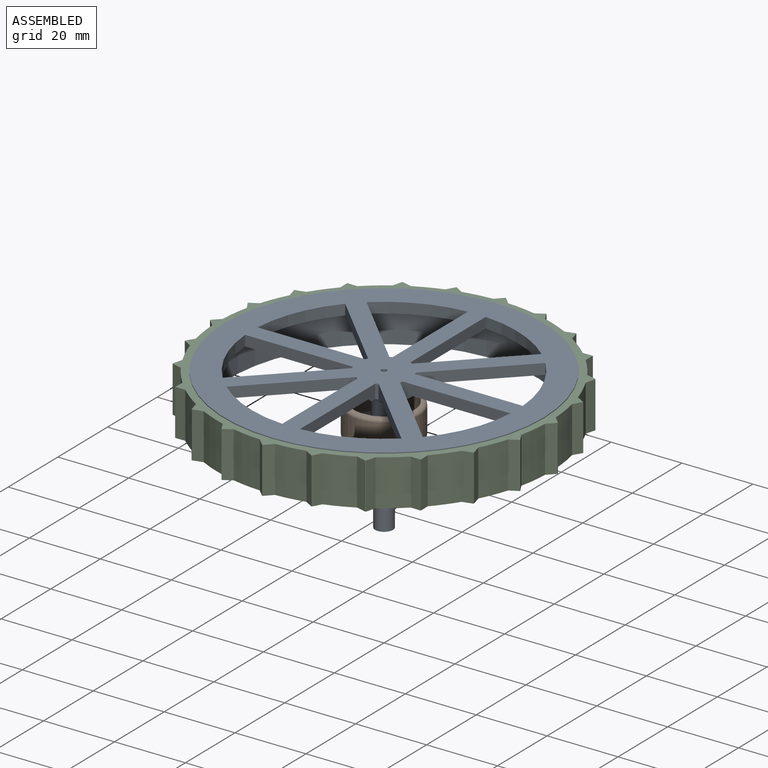
[diagram: assembled view]
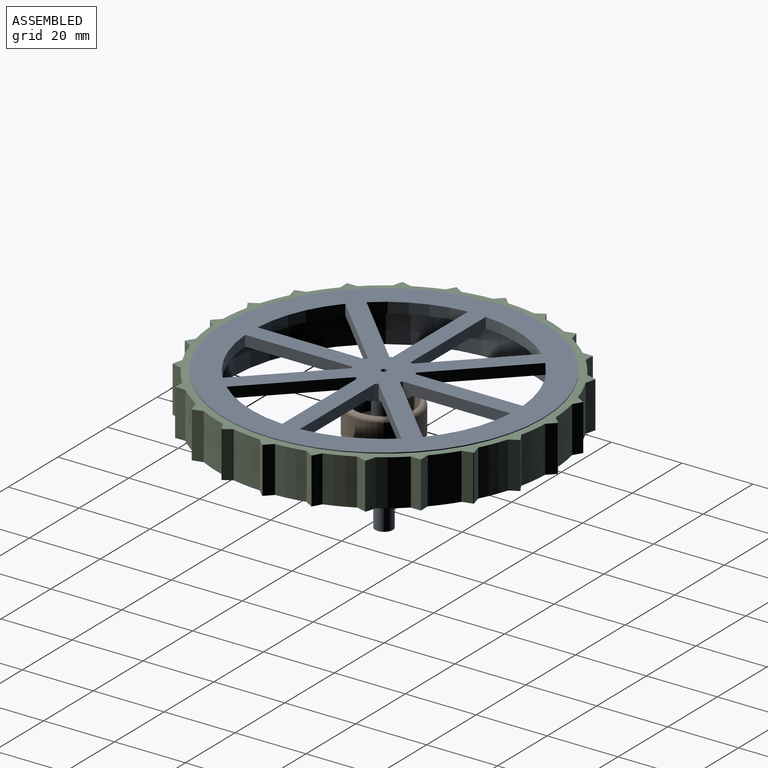
[diagram: assembled view, second angle]
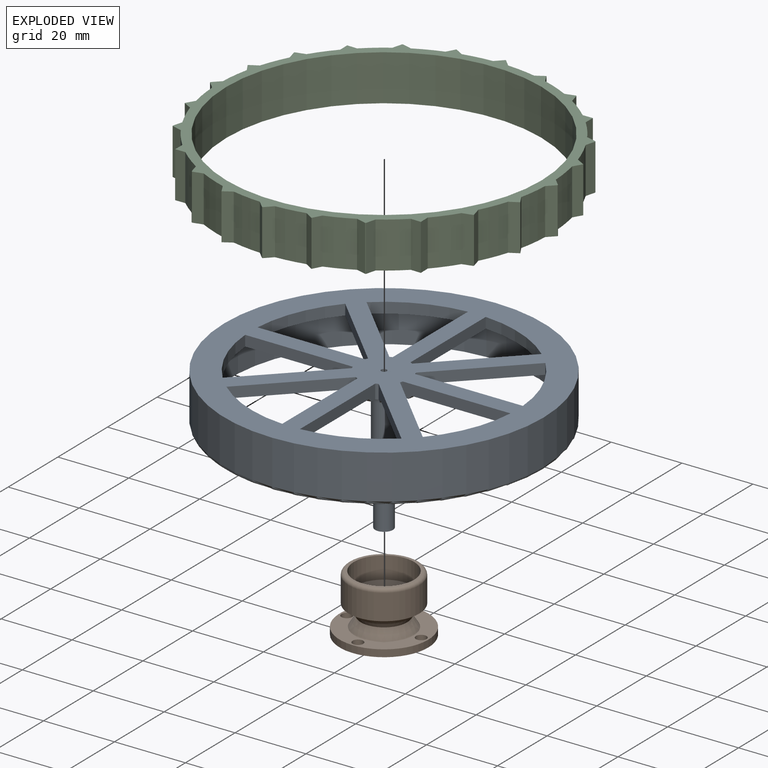
[diagram: exploded view]
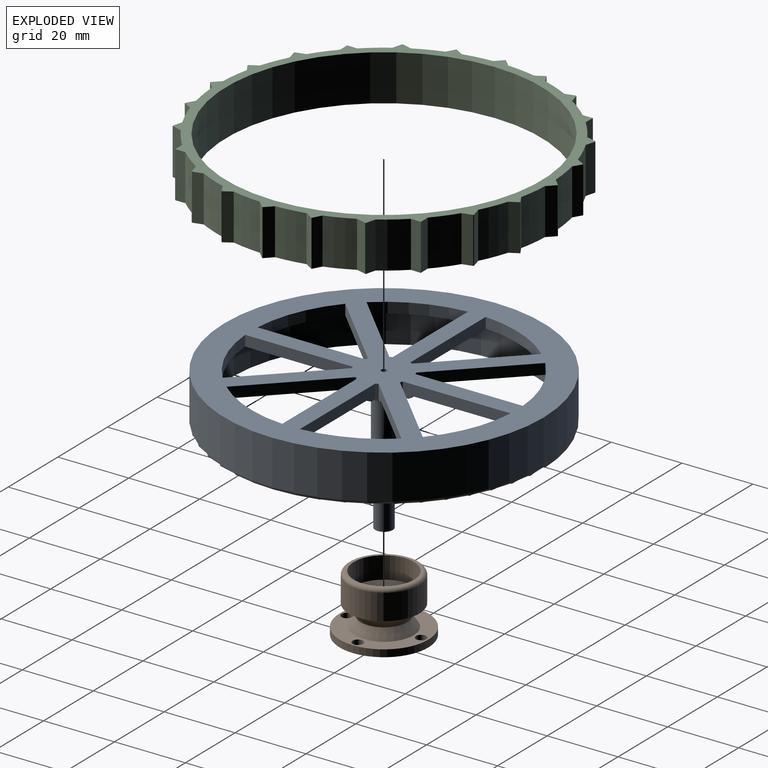
[diagram: exploded view, second angle]
ASSEMBLY  parts=3 mates=2
PART A: 54 faces, bbox 97.4x97.4x40 mm
  f0: cone r=5mm half-angle=45deg, axis (0,0,-1), area 7.2mm2, adj f7,f16,f18,f50
  f1: cone r=5mm half-angle=45deg, axis (0,0,-1), area 7.2mm2, adj f7,f20,f38,f50
  f2: cone r=5mm half-angle=45deg, axis (0,0,-1), area 7.2mm2, adj f7,f26,f40,f50
  f3: cone r=5mm half-angle=45deg, axis (0,0,-1), area 7.2mm2, adj f7,f22,f28,f50
  f4: cone r=5mm half-angle=45deg, axis (0,0,-1), area 7.2mm2, adj f7,f24,f30,f50
  f5: cone r=5mm half-angle=45deg, axis (0,0,-1), area 7.2mm2, adj f7,f32,f42,f50
  f6: cone r=5mm half-angle=45deg, axis (0,0,-1), area 7.2mm2, adj f7,f34,f44,f50
  f7: plane 82.6x82.6mm, normal (0,0,1), area 2043.8mm2, adj f0,f1,f2,f3,f4,f5,f6,f13
  f8: plane 90x90mm, normal (0,0,-1), area 3323.2mm2, adj f10,f14,f15,f16,f17,f18,f19,f20
  f9: cylinder r=43.3mm len=86.6mm, axis (0,0,-1), area 2312.5mm2, adj f11,f13
  f10: cylinder r=45mm len=90mm, axis (0,0,-1), area 3534.3mm2, adj f8,f12
  f11: plane 88x88mm, normal (0,0,1), area 192mm2, adj f9,f12
  f12: torus R=44mm, axis (0,0,1), area 440.5mm2, adj f10,f11
  f13: torus R=41.3mm, axis (0,0,1), area 840.4mm2, adj f7,f9
  f14: plane 21.47x21.47mm, normal (-0.71,0.71,0), area 93.1mm2, adj f7,f8,f15,f17,f50,f52
  f15: cylinder r=7.5mm len=4mm, axis (0,0,-1), area 3.2mm2, adj f8,f14,f16,f50
  f16: plane 30.36x4.01mm, normal (1,0,0), area 93.1mm2, adj f0,f7,f8,f15,f17,f50
  f17: cylinder r=37.5mm len=22.19mm, axis (0,0,-1), area 73.3mm2, adj f7,f8,f14,f16
  f18: plane 30.36x4.01mm, normal (-1,0,0), area 93.1mm2, adj f0,f7,f8,f19,f21,f50
  f19: cylinder r=7.5mm len=4mm, axis (0,0,-1), area 3.2mm2, adj f8,f18,f20,f50
  f20: plane 21.47x21.47mm, normal (0.71,0.71,0), area 93.1mm2, adj f1,f7,f8,f19,f21,f50
  f21: cylinder r=37.5mm len=22.19mm, axis (0,0,-1), area 73.3mm2, adj f7,f8,f18,f20
  f22: plane 21.47x21.47mm, normal (0.71,-0.71,0), area 93.1mm2, adj f3,f7,f8,f23,f25,f50
  f23: cylinder r=7.5mm len=4mm, axis (0,0,-1), area 3.2mm2, adj f8,f22,f24,f50
  f24: plane 30.36x4.01mm, normal (-1,0,0), area 93.1mm2, adj f4,f7,f8,f23,f25,f50
  f25: cylinder r=37.5mm len=22.19mm, axis (0,0,-1), area 73.3mm2, adj f7,f8,f22,f24
  f26: plane 30.36x4.01mm, normal (0,-1,0), area 93.1mm2, adj f2,f7,f8,f27,f29,f50
  f27: cylinder r=7.5mm len=4mm, axis (0,0,-1), area 3.2mm2, adj f8,f26,f28,f50
  f28: plane 21.47x21.47mm, normal (-0.71,0.71,0), area 93.1mm2, adj f3,f7,f8,f27,f29,f50
  f29: cylinder r=37.5mm len=22.19mm, axis (0,0,-1), area 73.3mm2, adj f7,f8,f26,f28
  f30: plane 30.36x4.01mm, normal (1,0,0), area 93.1mm2, adj f4,f7,f8,f31,f33,f50
  f31: cylinder r=7.5mm len=4mm, axis (0,0,-1), area 3.2mm2, adj f8,f30,f32,f50
  f32: plane 21.47x21.47mm, normal (-0.71,-0.71,0), area 93.1mm2, adj f5,f7,f8,f31,f33,f50
  f33: cylinder r=37.5mm len=22.19mm, axis (0,0,-1), area 73.3mm2, adj f7,f8,f30,f32
  f34: plane 30.36x4.01mm, normal (0,1,0), area 93.1mm2, adj f6,f7,f8,f35,f37,f50
  f35: cylinder r=7.5mm len=4mm, axis (0,0,-1), area 3.2mm2, adj f8,f34,f36,f50
  f36: plane 21.47x21.47mm, normal (0.71,-0.71,0), area 93.1mm2, adj f7,f8,f35,f37,f50,f52
  f37: cylinder r=37.5mm len=22.19mm, axis (0,0,-1), area 73.3mm2, adj f7,f8,f34,f36
  f38: plane 21.47x21.47mm, normal (-0.71,-0.71,0), area 93.1mm2, adj f1,f7,f8,f39,f41,f50
  f39: cylinder r=7.5mm len=4mm, axis (0,0,-1), area 3.2mm2, adj f8,f38,f40,f50
  f40: plane 30.36x4.01mm, normal (0,1,0), area 93.1mm2, adj f2,f7,f8,f39,f41,f50
  f41: cylinder r=37.5mm len=22.19mm, axis (0,0,-1), area 73.3mm2, adj f7,f8,f38,f40
  f42: plane 21.47x21.47mm, normal (0.71,0.71,0), area 93.1mm2, adj f5,f7,f8,f43,f45,f50
  f43: cylinder r=7.5mm len=4mm, axis (0,0,-1), area 3.2mm2, adj f8,f42,f44,f50
  f44: plane 30.36x4.01mm, normal (0,-1,0), area 93.1mm2, adj f6,f7,f8,f43,f45,f50
  f45: cylinder r=37.5mm len=22.19mm, axis (0,0,-1), area 73.3mm2, adj f7,f8,f42,f44
  f46: cylinder r=3.04mm len=17.61mm, axis (0,0,-1), area 336.6mm2, adj f51,f53
  f47: cylinder r=0.78mm len=40mm, axis (0,0,-1), area 194.8mm2, adj f8,f49
  f48: cylinder r=2.5mm len=14.85mm, axis (0,0,-1), area 233.3mm2, adj f49,f51
  f49: plane 5x5mm, normal (0,0,1), area 17.7mm2, adj f47,f48
  f50: plane 18x18mm, normal (0,0,1), area 123mm2, adj f0,f1,f2,f3,f4,f5,f6,f14
  f51: cone r=2.5mm half-angle=45deg, axis (0,0,-1), area 13.4mm2, adj f46,f48
  f52: cone r=5mm half-angle=45deg, axis (0,0,-1), area 7.2mm2, adj f7,f14,f36,f50
  f53: torus R=6.04mm, axis (0,0,1), area 122.4mm2, adj f46,f50
PART B: 15 faces, bbox 26x26x16.2 mm
  f0: plane 17x17mm, normal (0,0,1), area 188.5mm2, adj f2,f11
  f1: cylinder r=10mm len=20mm, axis (0,0,1), area 452.4mm2, adj f12,f13
  f2: cylinder r=8.5mm len=17mm, axis (0,0,-1), area 331.1mm2, adj f0,f3
  f3: plane 18x18mm, normal (0,0,1), area 27.5mm2, adj f2,f12
  f4: cylinder r=1.5mm len=3mm, axis (0,0,-1), area 18.8mm2, adj f9,f10
  f5: cylinder r=1.5mm len=3mm, axis (0,0,-1), area 18.8mm2, adj f9,f10
  f6: cylinder r=1.5mm len=3mm, axis (0,0,-1), area 18.8mm2, adj f9,f10
  f7: cylinder r=1.5mm len=3mm, axis (0,0,-1), area 18.8mm2, adj f9,f10
  f8: cylinder r=12.5mm len=25mm, axis (0,0,-1), area 157.1mm2, adj f9,f10
  f9: plane 25x25mm, normal (0,0,1), area 243.1mm2, adj f4,f5,f6,f7,f8,f14
  f10: plane 25x25mm, normal (0,0,-1), area 424.1mm2, adj f4,f5,f6,f7,f8,f11
  f11: cylinder r=3.5mm len=10mm, axis (0,0,-1), area 219.9mm2, adj f0,f10
  f12: torus R=9mm, axis (0,0,1), area 95.1mm2, adj f1,f3
  f13: torus R=12mm, axis (0,0,1), area 244.1mm2, adj f1,f14
  f14: cone r=6.54mm half-angle=32.8deg, axis (0,0,-1), area 157.4mm2, adj f9,f13
PART C: 87 faces, bbox 98x98x13 mm
  f0: cylinder r=47mm len=13mm, axis (0,0,-1), area 106.4mm2, adj f37,f38,f53,f54
  f1: plane 13x0.17mm, normal (0.87,0.5,0), area 2.5mm2, adj f37,f38,f53,f76
  f2: cylinder r=47mm len=13mm, axis (0,0,-1), area 106.4mm2, adj f37,f38,f52,f76
  f3: cylinder r=47mm len=13mm, axis (0,0,-1), area 106.4mm2, adj f37,f38,f50,f51
  f4: plane 13x0.17mm, normal (0.5,0.87,0), area 2.5mm2, adj f37,f38,f50,f75
  f5: cylinder r=47mm len=13mm, axis (0,0,-1), area 106.4mm2, adj f37,f38,f49,f75
  f6: cylinder r=47mm len=13mm, axis (0,0,-1), area 106.4mm2, adj f37,f38,f47,f48
  f7: plane 13x0.19mm, normal (0,1,0), area 2.5mm2, adj f37,f38,f47,f86
  f8: cylinder r=47mm len=13mm, axis (0,0,-1), area 106.4mm2, adj f37,f38,f46,f86
  f9: cylinder r=47mm len=13mm, axis (0,0,-1), area 106.4mm2, adj f37,f38,f44,f45
  f10: plane 13x0.17mm, normal (-0.5,0.87,0), area 2.5mm2, adj f37,f38,f44,f85
  f11: cylinder r=47mm len=13mm, axis (0,0,-1), area 106.4mm2, adj f37,f38,f43,f85
  f12: cylinder r=47mm len=13mm, axis (0,0,-1), area 106.4mm2, adj f37,f38,f41,f42
  f13: plane 13x0.17mm, normal (-0.87,0.5,0), area 2.5mm2, adj f37,f38,f41,f84
  f14: cylinder r=47mm len=13mm, axis (0,0,-1), area 106.4mm2, adj f37,f38,f40,f84
  f15: cylinder r=47mm len=13mm, axis (0,0,-1), area 106.4mm2, adj f37,f38,f39,f74
  f16: plane 13x0.19mm, normal (-1,0,0), area 2.5mm2, adj f37,f38,f74,f83
  f17: cylinder r=47mm len=13mm, axis (0,0,-1), area 106.4mm2, adj f37,f38,f73,f83
  f18: cylinder r=47mm len=13mm, axis (0,0,-1), area 106.4mm2, adj f37,f38,f71,f72
  f19: plane 13x0.17mm, normal (-0.87,-0.5,0), area 2.5mm2, adj f37,f38,f71,f82
  f20: cylinder r=47mm len=13mm, axis (0,0,-1), area 106.4mm2, adj f37,f38,f70,f82
  f21: cylinder r=47mm len=13mm, axis (0,0,-1), area 106.4mm2, adj f37,f38,f68,f69
  f22: plane 13x0.17mm, normal (-0.5,-0.87,0), area 2.5mm2, adj f37,f38,f68,f81
  f23: cylinder r=47mm len=13mm, axis (0,0,-1), area 106.4mm2, adj f37,f38,f67,f81
  f24: cylinder r=47mm len=13mm, axis (0,0,-1), area 106.4mm2, adj f37,f38,f65,f66
  f25: plane 13x0.19mm, normal (0,-1,0), area 2.5mm2, adj f37,f38,f65,f80
  f26: cylinder r=47mm len=13mm, axis (0,0,-1), area 106.4mm2, adj f37,f38,f64,f80
  f27: cylinder r=47mm len=13mm, axis (0,0,-1), area 106.4mm2, adj f37,f38,f62,f63
  f28: plane 13x0.17mm, normal (0.5,-0.87,0), area 2.5mm2, adj f37,f38,f62,f79
  f29: cylinder r=47mm len=13mm, axis (0,0,-1), area 106.4mm2, adj f37,f38,f61,f79
  f30: cylinder r=47mm len=13mm, axis (0,0,-1), area 106.4mm2, adj f37,f38,f59,f60
  f31: plane 13x0.17mm, normal (0.87,-0.5,0), area 2.5mm2, adj f37,f38,f59,f78
  f32: cylinder r=47mm len=13mm, axis (0,0,-1), area 106.4mm2, adj f37,f38,f58,f78
  f33: cylinder r=47mm len=13mm, axis (0,0,-1), area 106.4mm2, adj f37,f38,f56,f57
  f34: plane 13x0.19mm, normal (1,0,0), area 2.5mm2, adj f37,f38,f56,f77
  f35: cylinder r=47mm len=13mm, axis (0,0,-1), area 106.4mm2, adj f37,f38,f55,f77
  f36: cylinder r=44.5mm len=89mm, axis (0,0,-1), area 3634.8mm2, adj f37,f38
  f37: plane 98x98mm, normal (0,0,1), area 819.2mm2, adj f0,f1,f2,f3,f4,f5,f6,f7
  f38: plane 98x98mm, normal (0,0,-1), area 819.2mm2, adj f0,f1,f2,f3,f4,f5,f6,f7
  f39: plane 13x2.44mm, normal (-0.86,-0.51,0), area 36.9mm2, adj f15,f37,f38,f40
  f40: plane 13x2.48mm, normal (-0.49,0.87,0), area 36.9mm2, adj f14,f37,f38,f39
  f41: plane 13x2.8mm, normal (-0.26,0.97,0), area 37.7mm2, adj f12,f13,f37,f38
  f42: plane 13x2.84mm, normal (-1,-0.02,0), area 36.9mm2, adj f12,f37,f38,f43
  f43: plane 13x2.84mm, normal (0.02,1,0), area 36.9mm2, adj f11,f37,f38,f42
  f44: plane 13x2.8mm, normal (0.26,0.97,0), area 37.7mm2, adj f9,f10,f37,f38
  f45: plane 13x2.48mm, normal (-0.87,0.49,0), area 36.9mm2, adj f9,f37,f38,f46
  f46: plane 13x2.44mm, normal (0.51,0.86,0), area 36.9mm2, adj f8,f37,f38,f45
  f47: plane 13x2.05mm, normal (0.71,0.71,0), area 37.7mm2, adj f6,f7,f37,f38
  f48: plane 13x2.44mm, normal (-0.51,0.86,0), area 36.9mm2, adj f6,f37,f38,f49
  f49: plane 13x2.48mm, normal (0.87,0.49,0), area 36.9mm2, adj f5,f37,f38,f48
  f50: plane 13x2.8mm, normal (0.97,0.26,0), area 37.7mm2, adj f3,f4,f37,f38
  f51: plane 13x2.84mm, normal (-0.02,1,0), area 36.9mm2, adj f3,f37,f38,f52
  f52: plane 13x2.84mm, normal (1,-0.02,0), area 36.9mm2, adj f2,f37,f38,f51
  f53: plane 13x2.8mm, normal (0.97,-0.26,0), area 37.7mm2, adj f0,f1,f37,f38
  f54: plane 13x2.48mm, normal (0.49,0.87,0), area 36.9mm2, adj f0,f37,f38,f55
  f55: plane 13x2.44mm, normal (0.86,-0.51,0), area 36.9mm2, adj f35,f37,f38,f54
  f56: plane 13x2.05mm, normal (0.71,-0.71,0), area 37.7mm2, adj f33,f34,f37,f38
  f57: plane 13x2.44mm, normal (0.86,0.51,0), area 36.9mm2, adj f33,f37,f38,f58
  f58: plane 13x2.48mm, normal (0.49,-0.87,0), area 36.9mm2, adj f32,f37,f38,f57
  f59: plane 13x2.8mm, normal (0.26,-0.97,0), area 37.7mm2, adj f30,f31,f37,f38
  f60: plane 13x2.84mm, normal (1,0.02,0), area 36.9mm2, adj f30,f37,f38,f61
  f61: plane 13x2.84mm, normal (-0.02,-1,0), area 36.9mm2, adj f29,f37,f38,f60
  f62: plane 13x2.8mm, normal (-0.26,-0.97,0), area 37.7mm2, adj f27,f28,f37,f38
  f63: plane 13x2.48mm, normal (0.87,-0.49,0), area 36.9mm2, adj f27,f37,f38,f64
  f64: plane 13x2.44mm, normal (-0.51,-0.86,0), area 36.9mm2, adj f26,f37,f38,f63
  f65: plane 13x2.05mm, normal (-0.71,-0.71,0), area 37.7mm2, adj f24,f25,f37,f38
  f66: plane 13x2.44mm, normal (0.51,-0.86,0), area 36.9mm2, adj f24,f37,f38,f67
  f67: plane 13x2.48mm, normal (-0.87,-0.49,0), area 36.9mm2, adj f23,f37,f38,f66
  f68: plane 13x2.8mm, normal (-0.97,-0.26,0), area 37.7mm2, adj f21,f22,f37,f38
  f69: plane 13x2.84mm, normal (0.02,-1,0), area 36.9mm2, adj f21,f37,f38,f70
  f70: plane 13x2.84mm, normal (-1,0.02,0), area 36.9mm2, adj f20,f37,f38,f69
  f71: plane 13x2.8mm, normal (-0.97,0.26,0), area 37.7mm2, adj f18,f19,f37,f38
  f72: plane 13x2.48mm, normal (-0.49,-0.87,0), area 36.9mm2, adj f18,f37,f38,f73
  f73: plane 13x2.44mm, normal (-0.86,0.51,0), area 36.9mm2, adj f17,f37,f38,f72
  f74: plane 13x2.05mm, normal (-0.71,0.71,0), area 37.7mm2, adj f15,f16,f37,f38
  f75: plane 13x2.8mm, normal (-0.26,0.97,0), area 37.7mm2, adj f4,f5,f37,f38
  f76: plane 13x2.8mm, normal (0.26,0.97,0), area 37.7mm2, adj f1,f2,f37,f38
  f77: plane 13x2.05mm, normal (0.71,0.71,0), area 37.7mm2, adj f34,f35,f37,f38
  f78: plane 13x2.8mm, normal (0.97,0.26,0), area 37.7mm2, adj f31,f32,f37,f38
  f79: plane 13x2.8mm, normal (0.97,-0.26,0), area 37.7mm2, adj f28,f29,f37,f38
  f80: plane 13x2.05mm, normal (0.71,-0.71,0), area 37.7mm2, adj f25,f26,f37,f38
  f81: plane 13x2.8mm, normal (0.26,-0.97,0), area 37.7mm2, adj f22,f23,f37,f38
  f82: plane 13x2.8mm, normal (-0.26,-0.97,0), area 37.7mm2, adj f19,f20,f37,f38
  f83: plane 13x2.05mm, normal (-0.71,-0.71,0), area 37.7mm2, adj f16,f17,f37,f38
  f84: plane 13x2.8mm, normal (-0.97,-0.26,0), area 37.7mm2, adj f13,f14,f37,f38
  f85: plane 13x2.8mm, normal (-0.97,0.26,0), area 37.7mm2, adj f10,f11,f37,f38
  f86: plane 13x2.05mm, normal (-0.71,0.71,0), area 37.7mm2, adj f7,f8,f37,f38
PLACE A rot(axis=(1,0,0),180deg) t=(0,0,21)mm
PLACE B t=(0,0,-3)mm
PLACE C t=(0,0,7.75)mm
MATE revolute A.f46 <-> B.f2  axis (0,0,1) through (0,0,14)mm
MATE slider C.f0 <-> A.f10  axis (0,0,-1) through (0,0,14.25)mm
